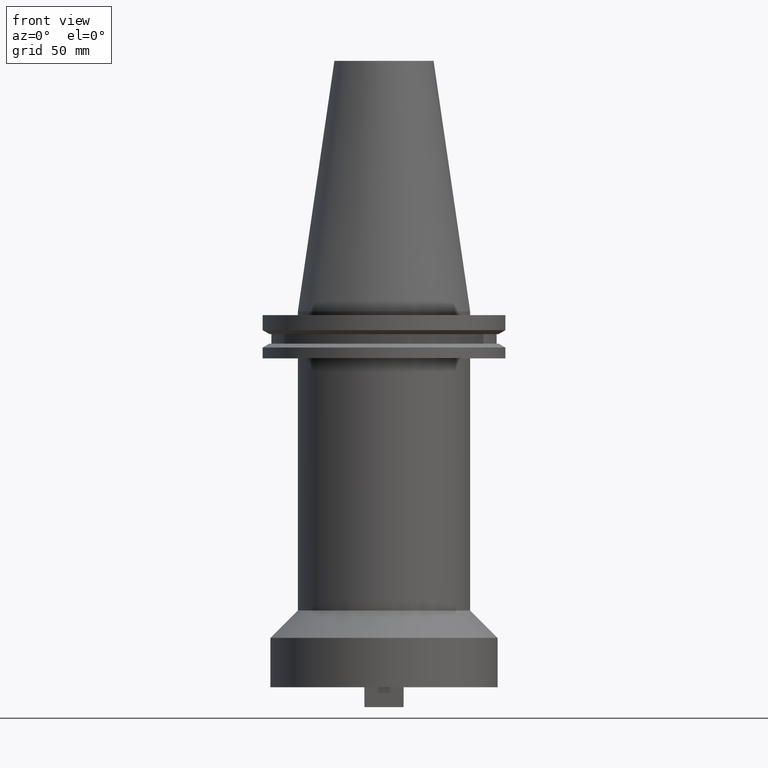
[diagram: clean part render]
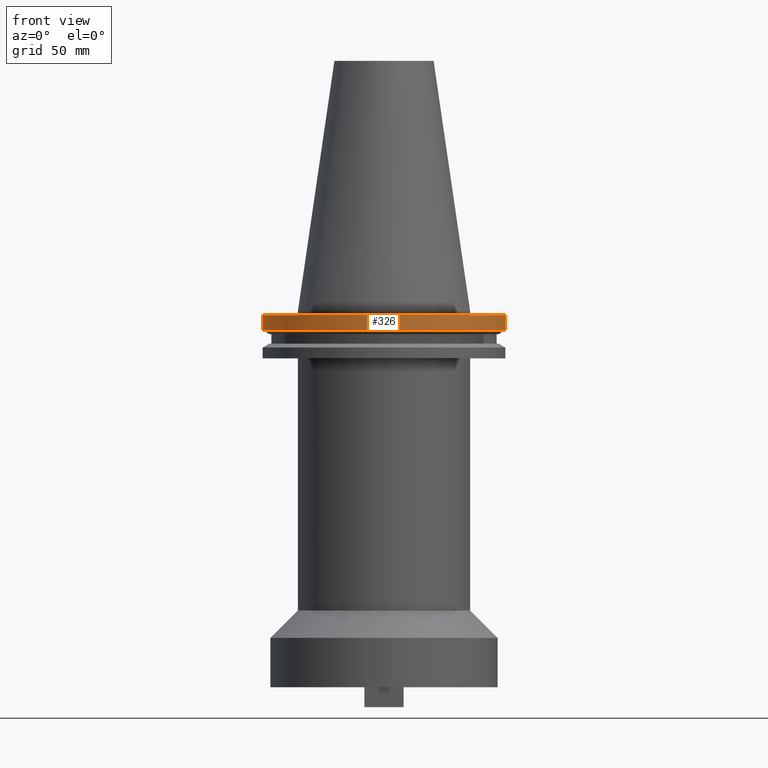
[diagram: same view with one face highlighted and labeled with its STEP entity id]
A machine part, front view. The second image highlights one B-rep face of the part: STEP entity #326.
In plain terms, the highlighted cylindrical surface (partial cylindrical patch) has radius 49.215 mm, axis along (-0, -0, 1).
Its self-contained STEP definition (entity closure, byte-faithful):
#15 = EDGE_CURVE ( 'NONE', #113, #747, #1108, .T. ) ;
#27 = LINE ( 'NONE', #697, #1069 ) ;
#28 = CARTESIAN_POINT ( 'NONE',  ( 0.000000000000000000, 0.000000000000000000, -7.602389855251287187 ) ) ;
#32 = EDGE_LOOP ( 'NONE', ( #883, #624, #377, #197 ) ) ;
#94 = CARTESIAN_POINT ( 'NONE',  ( -49.21499999999999631, 6.027099222003697826E-15, 101.5999999999999943 ) ) ;
#113 = VERTEX_POINT ( 'NONE', #337 ) ;
#195 = VERTEX_POINT ( 'NONE', #476 ) ;
#197 = ORIENTED_EDGE ( 'NONE', *, *, #1006, .F. ) ;
#199 = AXIS2_PLACEMENT_3D ( 'NONE', #28, #879, #864 ) ;
#290 = AXIS2_PLACEMENT_3D ( 'NONE', #451, #965, #365 ) ;
#314 = CARTESIAN_POINT ( 'NONE',  ( 0.000000000000000000, 0.000000000000000000, 101.5999999999999943 ) ) ;
#326 = ADVANCED_FACE ( 'NONE', ( #583 ), #1074, .T. ) ;
#337 = CARTESIAN_POINT ( 'NONE',  ( -49.21500000000000341, 6.027099222003699404E-15, -7.602389855251287187 ) ) ;
#365 = DIRECTION ( 'NONE',  ( 1.000000000000000000, 0.000000000000000000, 0.000000000000000000 ) ) ;
#377 = ORIENTED_EDGE ( 'NONE', *, *, #605, .T. ) ;
#447 = CIRCLE ( 'NONE', #290, 49.21499999999999631 ) ;
#451 = CARTESIAN_POINT ( 'NONE',  ( 0.000000000000000000, 0.000000000000000000, -1.499999999999987566 ) ) ;
#476 = CARTESIAN_POINT ( 'NONE',  ( 49.21500000000000341, 0.000000000000000000, -7.602389855251287187 ) ) ;
#552 = CIRCLE ( 'NONE', #199, 49.21500000000000341 ) ;
#560 = DIRECTION ( 'NONE',  ( 1.000000000000000000, 0.000000000000000000, 0.000000000000000000 ) ) ;
#583 = FACE_OUTER_BOUND ( 'NONE', #32, .T. ) ;
#605 = EDGE_CURVE ( 'NONE', #195, #807, #27, .T. ) ;
#624 = ORIENTED_EDGE ( 'NONE', *, *, #763, .T. ) ;
#675 = AXIS2_PLACEMENT_3D ( 'NONE', #314, #985, #560 ) ;
#679 = DIRECTION ( 'NONE',  ( -0.000000000000000000, -0.000000000000000000, 1.000000000000000000 ) ) ;
#697 = CARTESIAN_POINT ( 'NONE',  ( 49.21499999999999631, 0.000000000000000000, 101.5999999999999943 ) ) ;
#710 = DIRECTION ( 'NONE',  ( -0.000000000000000000, -0.000000000000000000, 1.000000000000000000 ) ) ;
#747 = VERTEX_POINT ( 'NONE', #768 ) ;
#763 = EDGE_CURVE ( 'NONE', #113, #195, #552, .T. ) ;
#768 = CARTESIAN_POINT ( 'NONE',  ( -49.21499999999999631, 6.027099222003697826E-15, -1.499999999999987566 ) ) ;
#807 = VERTEX_POINT ( 'NONE', #901 ) ;
#864 = DIRECTION ( 'NONE',  ( 1.000000000000000000, 0.000000000000000000, 0.000000000000000000 ) ) ;
#879 = DIRECTION ( 'NONE',  ( -0.000000000000000000, -0.000000000000000000, 1.000000000000000000 ) ) ;
#883 = ORIENTED_EDGE ( 'NONE', *, *, #15, .F. ) ;
#901 = CARTESIAN_POINT ( 'NONE',  ( 49.21499999999999631, 0.000000000000000000, -1.499999999999987566 ) ) ;
#965 = DIRECTION ( 'NONE',  ( -0.000000000000000000, -0.000000000000000000, 1.000000000000000000 ) ) ;
#985 = DIRECTION ( 'NONE',  ( -0.000000000000000000, -0.000000000000000000, 1.000000000000000000 ) ) ;
#1006 = EDGE_CURVE ( 'NONE', #747, #807, #447, .T. ) ;
#1044 = VECTOR ( 'NONE', #679, 1000.000000000000000 ) ;
#1069 = VECTOR ( 'NONE', #710, 1000.000000000000000 ) ;
#1074 = CYLINDRICAL_SURFACE ( 'NONE', #675, 49.21499999999999631 ) ;
#1108 = LINE ( 'NONE', #94, #1044 ) ;